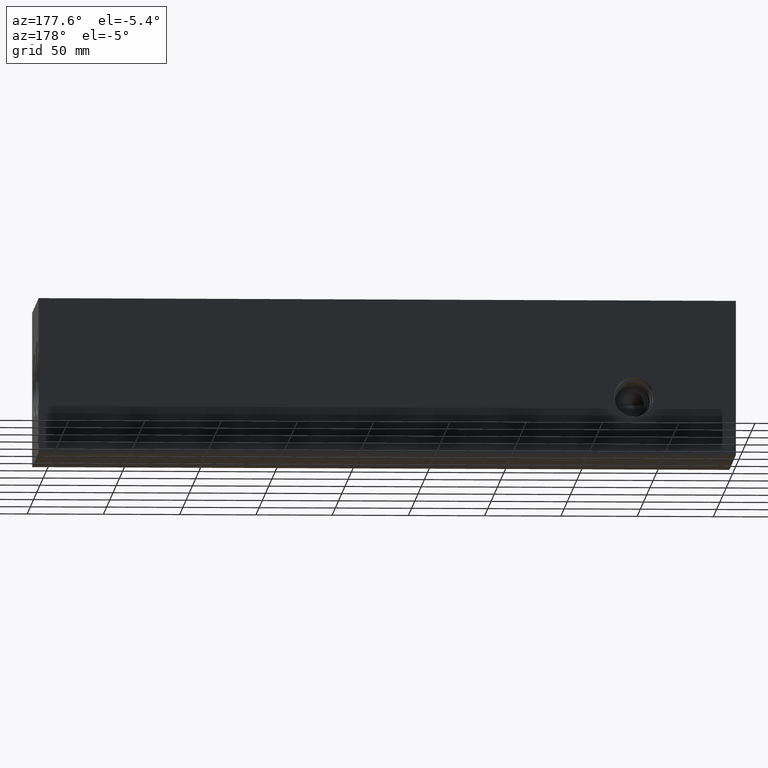
[diagram: clean part render]
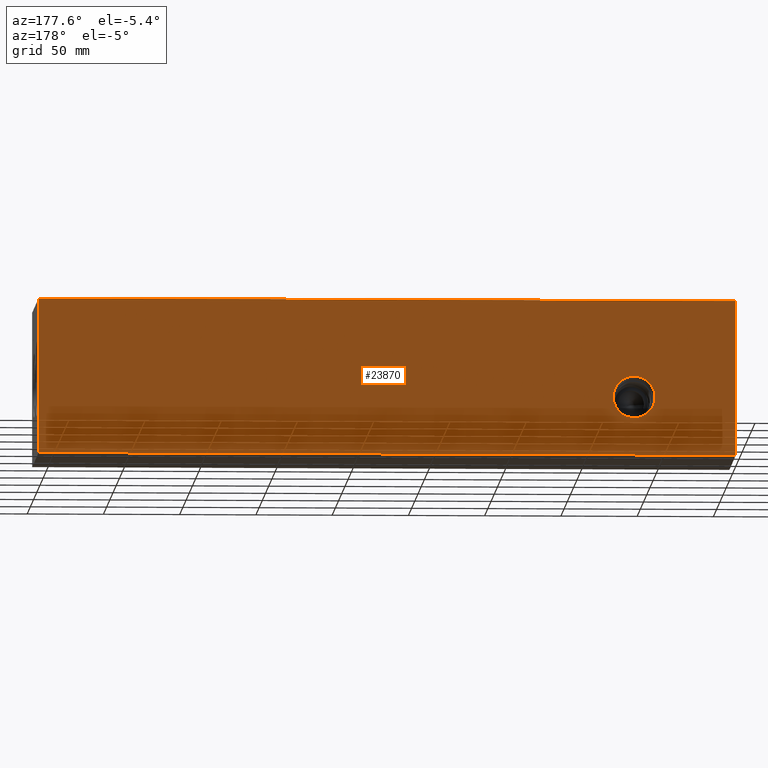
[diagram: same view with one face highlighted and labeled with its STEP entity id]
A machine part, auxiliary view. The second image highlights one B-rep face of the part: STEP entity #23870.
In plain terms, the highlighted planar face has unit normal (0, 1, 0).
Its self-contained STEP definition (entity closure, byte-faithful):
#740=CIRCLE('',#24432,13.6906);
#741=CIRCLE('',#24433,13.6906);
#2281=FACE_BOUND('',#5045,.T.);
#3604=FACE_OUTER_BOUND('',#5044,.T.);
#5044=EDGE_LOOP('',(#21141,#21142,#21143,#21144));
#5045=EDGE_LOOP('',(#21145,#21146));
#6049=LINE('',#36170,#7976);
#6109=LINE('',#36443,#8036);
#7047=LINE('',#41806,#8974);
#7048=LINE('',#41807,#8975);
#7976=VECTOR('',#27256,10.);
#8036=VECTOR('',#27370,10.);
#8974=VECTOR('',#31352,10.);
#8975=VECTOR('',#31353,10.);
#9919=VERTEX_POINT('',#36167);
#9920=VERTEX_POINT('',#36169);
#9977=VERTEX_POINT('',#36439);
#9978=VERTEX_POINT('',#36441);
#10402=VERTEX_POINT('',#39188);
#10403=VERTEX_POINT('',#39189);
#12633=EDGE_CURVE('',#9919,#9920,#6049,.T.);
#12717=EDGE_CURVE('',#9977,#9978,#6109,.T.);
#13426=EDGE_CURVE('',#10402,#10403,#740,.T.);
#13427=EDGE_CURVE('',#10403,#10402,#741,.T.);
#14645=EDGE_CURVE('',#9919,#9977,#7047,.T.);
#14646=EDGE_CURVE('',#9920,#9978,#7048,.T.);
#21141=ORIENTED_EDGE('',*,*,#14645,.T.);
#21142=ORIENTED_EDGE('',*,*,#12717,.T.);
#21143=ORIENTED_EDGE('',*,*,#14646,.F.);
#21144=ORIENTED_EDGE('',*,*,#12633,.F.);
#21145=ORIENTED_EDGE('',*,*,#13426,.T.);
#21146=ORIENTED_EDGE('',*,*,#13427,.T.);
#21887=PLANE('',#25732);
#23870=ADVANCED_FACE('',(#3604,#2281),#21887,.T.);
#24432=AXIS2_PLACEMENT_3D('',#39190,#28345,#28346);
#24433=AXIS2_PLACEMENT_3D('',#39191,#28347,#28348);
#25732=AXIS2_PLACEMENT_3D('',#41805,#31350,#31351);
#27256=DIRECTION('',(0.,0.,1.));
#27370=DIRECTION('',(0.,0.,1.));
#28345=DIRECTION('center_axis',(0.,-1.,0.));
#28346=DIRECTION('ref_axis',(1.,0.,0.));
#28347=DIRECTION('center_axis',(0.,-1.,0.));
#28348=DIRECTION('ref_axis',(1.,0.,0.));
#31350=DIRECTION('center_axis',(0.,1.,0.));
#31351=DIRECTION('ref_axis',(-1.,0.,0.));
#31352=DIRECTION('',(-1.,0.,0.));
#31353=DIRECTION('',(-1.,0.,0.));
#36167=CARTESIAN_POINT('',(457.2,101.6,0.));
#36169=CARTESIAN_POINT('',(457.2,101.6,101.6));
#36170=CARTESIAN_POINT('',(457.2,101.6,0.));
#36439=CARTESIAN_POINT('',(0.,101.6,0.));
#36441=CARTESIAN_POINT('',(0.,101.6,101.6));
#36443=CARTESIAN_POINT('',(0.,101.6,0.));
#39188=CARTESIAN_POINT('',(80.3656,101.6,38.1));
#39189=CARTESIAN_POINT('',(52.9844,101.6,38.1));
#39190=CARTESIAN_POINT('Origin',(66.675,101.6,38.1));
#39191=CARTESIAN_POINT('Origin',(66.675,101.6,38.1));
#41805=CARTESIAN_POINT('Origin',(457.2,101.6,0.));
#41806=CARTESIAN_POINT('',(457.2,101.6,0.));
#41807=CARTESIAN_POINT('',(457.2,101.6,101.6));